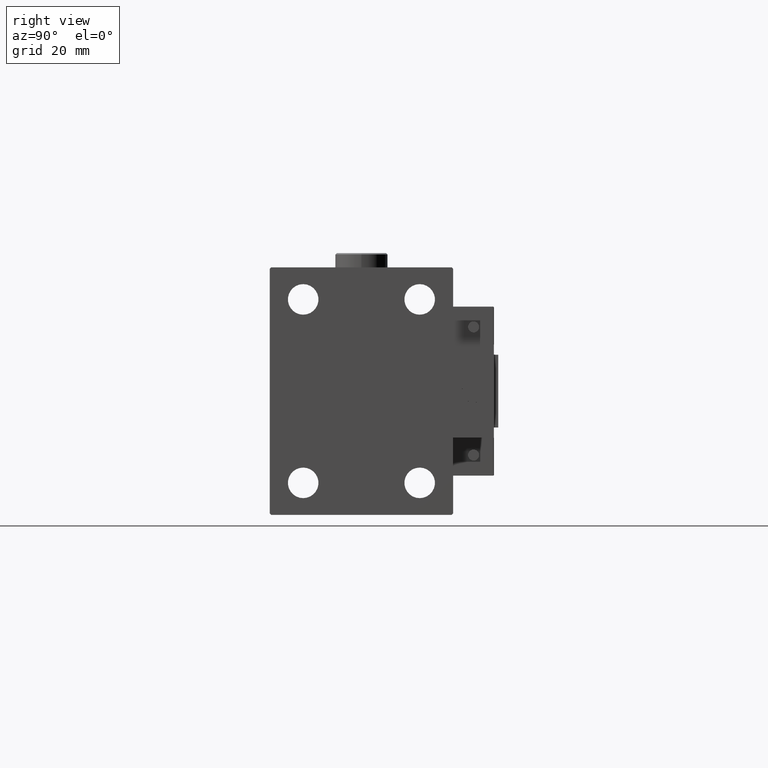
[diagram: clean part render]
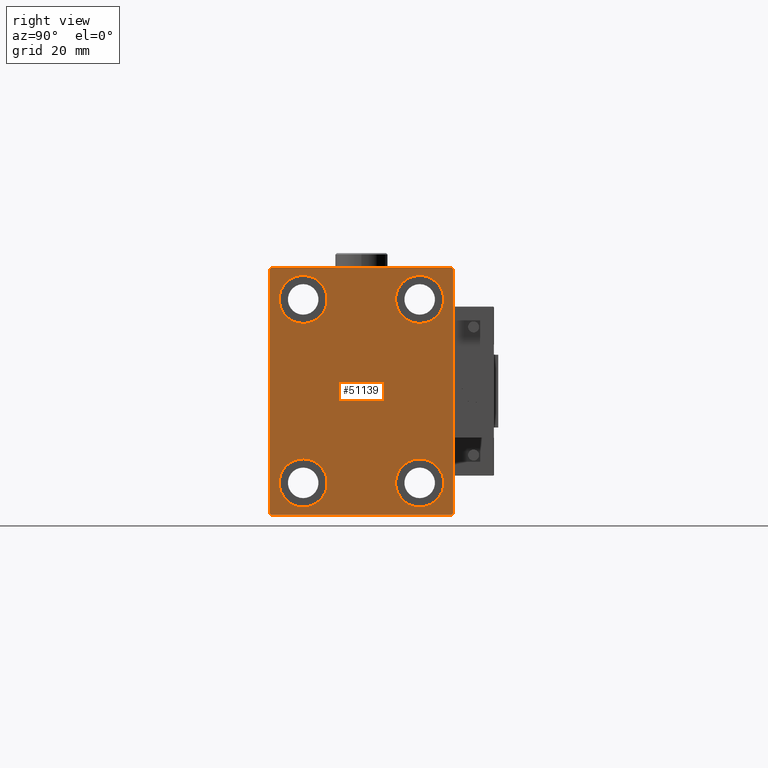
[diagram: same view with one face highlighted and labeled with its STEP entity id]
A machine part, right view. The second image highlights one B-rep face of the part: STEP entity #51139.
In plain terms, the highlighted planar face has unit normal (1, 0, 0).
Its self-contained STEP definition (entity closure, byte-faithful):
#138 = DIRECTION ( 'NONE',  ( -1.000000000000000000, -0.000000000000000000, -0.000000000000000000 ) ) ;
#539 = AXIS2_PLACEMENT_3D ( 'NONE', #2603, #14998, #26811 ) ;
#600 = CARTESIAN_POINT ( 'NONE',  ( 88.00000000000000000, 19.99999999999999645, -31.49999999999999289 ) ) ;
#1172 = AXIS2_PLACEMENT_3D ( 'NONE', #46733, #38493, #21451 ) ;
#1516 = EDGE_CURVE ( 'NONE', #49147, #28412, #7702, .T. ) ;
#1567 = CARTESIAN_POINT ( 'NONE',  ( 88.00000000000000000, -19.99999999999999645, 23.25000000000000355 ) ) ;
#2319 = LINE ( 'NONE', #35592, #26810 ) ;
#2603 = CARTESIAN_POINT ( 'NONE',  ( 88.00000000000000000, 20.00000000000000355, 31.50000000000000000 ) ) ;
#2731 = ORIENTED_EDGE ( 'NONE', *, *, #25497, .T. ) ;
#2841 = ORIENTED_EDGE ( 'NONE', *, *, #31513, .T. ) ;
#2885 = ORIENTED_EDGE ( 'NONE', *, *, #50374, .T. ) ;
#2987 = EDGE_CURVE ( 'NONE', #18360, #38834, #39170, .T. ) ;
#3042 = DIRECTION ( 'NONE',  ( -0.000000000000000000, -0.7071067811865474617, 0.7071067811865474617 ) ) ;
#4652 = ORIENTED_EDGE ( 'NONE', *, *, #51428, .T. ) ;
#5365 = DIRECTION ( 'NONE',  ( 0.000000000000000000, 0.000000000000000000, 1.000000000000000000 ) ) ;
#5684 = LINE ( 'NONE', #18333, #51940 ) ;
#6125 = VERTEX_POINT ( 'NONE', #48136 ) ;
#6211 = DIRECTION ( 'NONE',  ( 0.000000000000000000, -0.7071067811865378028, -0.7071067811865573427 ) ) ;
#6521 = EDGE_CURVE ( 'NONE', #12945, #42622, #42493, .T. ) ;
#6638 = EDGE_CURVE ( 'NONE', #37831, #20310, #13836, .T. ) ;
#7531 = VERTEX_POINT ( 'NONE', #18623 ) ;
#7631 = CARTESIAN_POINT ( 'NONE',  ( 88.00000000000000000, -20.00000000000000355, -23.24999999999999289 ) ) ;
#7702 = LINE ( 'NONE', #24477, #31200 ) ;
#8012 = CARTESIAN_POINT ( 'NONE',  ( 88.00000000000000000, -36.74999999999958078, -36.75000000000059686 ) ) ;
#8196 = CIRCLE ( 'NONE', #1172, 8.250000000000000000 ) ;
#8636 = CARTESIAN_POINT ( 'NONE',  ( 88.00000000000000000, 30.99999999999998579, 42.50000000000000711 ) ) ;
#9535 = DIRECTION ( 'NONE',  ( 0.000000000000000000, -1.632680918566406300E-16, 1.000000000000000000 ) ) ;
#9645 = DIRECTION ( 'NONE',  ( -0.000000000000000000, 0.7071067811865573427, -0.7071067811865378028 ) ) ;
#9715 = DIRECTION ( 'NONE',  ( 0.000000000000000000, 0.000000000000000000, 1.000000000000000000 ) ) ;
#9782 = ORIENTED_EDGE ( 'NONE', *, *, #2987, .T. ) ;
#9977 = CARTESIAN_POINT ( 'NONE',  ( 88.00000000000000000, 20.00000000000000355, 31.50000000000000000 ) ) ;
#10541 = CIRCLE ( 'NONE', #48280, 8.249999999999992895 ) ;
#10577 = AXIS2_PLACEMENT_3D ( 'NONE', #21312, #138, #42196 ) ;
#11116 = ORIENTED_EDGE ( 'NONE', *, *, #38273, .T. ) ;
#12433 = VECTOR ( 'NONE', #9645, 1000.000000000000000 ) ;
#12700 = CARTESIAN_POINT ( 'NONE',  ( 88.00000000000000000, 20.00000000000000355, 23.25000000000000355 ) ) ;
#12945 = VERTEX_POINT ( 'NONE', #46982 ) ;
#13836 = CIRCLE ( 'NONE', #44519, 8.250000000000000000 ) ;
#14371 = CARTESIAN_POINT ( 'NONE',  ( 88.00000000000000000, 31.00000000000002842, -42.50000000000000711 ) ) ;
#14608 = AXIS2_PLACEMENT_3D ( 'NONE', #19431, #36202, #27669 ) ;
#14998 = DIRECTION ( 'NONE',  ( -1.000000000000000000, -0.000000000000000000, -0.000000000000000000 ) ) ;
#15282 = CARTESIAN_POINT ( 'NONE',  ( 88.00000000000000000, -31.00000000000000000, -42.50000000000000711 ) ) ;
#15609 = FACE_OUTER_BOUND ( 'NONE', #51864, .T. ) ;
#15718 = EDGE_CURVE ( 'NONE', #42145, #49214, #36060, .T. ) ;
#15938 = VECTOR ( 'NONE', #3042, 1000.000000000000114 ) ;
#16569 = VERTEX_POINT ( 'NONE', #37612 ) ;
#16701 = FACE_BOUND ( 'NONE', #43311, .T. ) ;
#17670 = VERTEX_POINT ( 'NONE', #12700 ) ;
#18134 = ORIENTED_EDGE ( 'NONE', *, *, #21023, .T. ) ;
#18303 = ORIENTED_EDGE ( 'NONE', *, *, #15718, .T. ) ;
#18333 = CARTESIAN_POINT ( 'NONE',  ( 88.00000000000000000, -36.75000000000044054, 36.74999999999942446 ) ) ;
#18346 = EDGE_CURVE ( 'NONE', #28412, #6125, #42521, .T. ) ;
#18360 = VERTEX_POINT ( 'NONE', #46921 ) ;
#18623 = CARTESIAN_POINT ( 'NONE',  ( 88.00000000000000000, -31.00000000000001421, 42.49999999999999289 ) ) ;
#19270 = ORIENTED_EDGE ( 'NONE', *, *, #49607, .T. ) ;
#19431 = CARTESIAN_POINT ( 'NONE',  ( 88.00000000000000000, 19.99999999999999645, -31.49999999999999289 ) ) ;
#19710 = CARTESIAN_POINT ( 'NONE',  ( 88.00000000000000000, 0.000000000000000000, 0.000000000000000000 ) ) ;
#20256 = DIRECTION ( 'NONE',  ( 0.000000000000000000, 0.000000000000000000, -1.000000000000000000 ) ) ;
#20310 = VERTEX_POINT ( 'NONE', #7631 ) ;
#21023 = EDGE_CURVE ( 'NONE', #6125, #54160, #23938, .T. ) ;
#21312 = CARTESIAN_POINT ( 'NONE',  ( 88.00000000000000000, -19.99999999999999645, 31.50000000000000000 ) ) ;
#21451 = DIRECTION ( 'NONE',  ( 0.000000000000000000, 0.000000000000000000, 1.000000000000000000 ) ) ;
#21611 = DIRECTION ( 'NONE',  ( 0.000000000000000000, 0.000000000000000000, -1.000000000000000000 ) ) ;
#21665 = ORIENTED_EDGE ( 'NONE', *, *, #35281, .T. ) ;
#23912 = VERTEX_POINT ( 'NONE', #15282 ) ;
#23938 = LINE ( 'NONE', #40709, #15938 ) ;
#23948 = CARTESIAN_POINT ( 'NONE',  ( 88.00000000000000000, -19.99999999999999645, 39.74999999999999289 ) ) ;
#24366 = CARTESIAN_POINT ( 'NONE',  ( 88.00000000000000000, -20.00000000000000355, -39.74999999999999289 ) ) ;
#24376 = FACE_BOUND ( 'NONE', #50866, .T. ) ;
#24477 = CARTESIAN_POINT ( 'NONE',  ( 88.00000000000000000, 36.75000000000045475, -36.74999999999943867 ) ) ;
#25497 = EDGE_CURVE ( 'NONE', #20310, #37831, #8196, .T. ) ;
#25627 = DIRECTION ( 'NONE',  ( 0.000000000000000000, 0.000000000000000000, 1.000000000000000000 ) ) ;
#26132 = ORIENTED_EDGE ( 'NONE', *, *, #18346, .T. ) ;
#26810 = VECTOR ( 'NONE', #43816, 1000.000000000000000 ) ;
#26811 = DIRECTION ( 'NONE',  ( 0.000000000000000000, 0.000000000000000000, 1.000000000000000000 ) ) ;
#27669 = DIRECTION ( 'NONE',  ( 0.000000000000000000, 0.000000000000000000, 1.000000000000000000 ) ) ;
#28412 = VERTEX_POINT ( 'NONE', #30241 ) ;
#28890 = ORIENTED_EDGE ( 'NONE', *, *, #44642, .T. ) ;
#29519 = CARTESIAN_POINT ( 'NONE',  ( 88.00000000000000000, -19.99999999999999645, 31.50000000000000000 ) ) ;
#30241 = CARTESIAN_POINT ( 'NONE',  ( 88.00000000000000000, 31.50000000000001421, -42.00000000000000711 ) ) ;
#30508 = VECTOR ( 'NONE', #21611, 1000.000000000000000 ) ;
#31170 = ORIENTED_EDGE ( 'NONE', *, *, #6521, .T. ) ;
#31200 = VECTOR ( 'NONE', #41249, 1000.000000000000000 ) ;
#31513 = EDGE_CURVE ( 'NONE', #16569, #17670, #10541, .T. ) ;
#32093 = VECTOR ( 'NONE', #46292, 1000.000000000000000 ) ;
#32329 = ORIENTED_EDGE ( 'NONE', *, *, #6638, .T. ) ;
#32692 = EDGE_CURVE ( 'NONE', #38834, #18360, #53585, .T. ) ;
#32726 = EDGE_LOOP ( 'NONE', ( #37683, #9782 ) ) ;
#33048 = LINE ( 'NONE', #8012, #12433 ) ;
#35281 = EDGE_CURVE ( 'NONE', #7531, #12945, #5684, .T. ) ;
#35592 = CARTESIAN_POINT ( 'NONE',  ( 88.00000000000000000, -31.50000000000000000, -42.50000000000000711 ) ) ;
#36060 = CIRCLE ( 'NONE', #10577, 8.249999999999992895 ) ;
#36099 = CARTESIAN_POINT ( 'NONE',  ( 88.00000000000000000, 19.99999999999999645, -39.74999999999999289 ) ) ;
#36202 = DIRECTION ( 'NONE',  ( -1.000000000000000000, -0.000000000000000000, -0.000000000000000000 ) ) ;
#36492 = FACE_BOUND ( 'NONE', #44638, .T. ) ;
#37384 = CIRCLE ( 'NONE', #539, 8.249999999999992895 ) ;
#37612 = CARTESIAN_POINT ( 'NONE',  ( 88.00000000000000000, 20.00000000000000355, 39.74999999999999289 ) ) ;
#37683 = ORIENTED_EDGE ( 'NONE', *, *, #32692, .T. ) ;
#37831 = VERTEX_POINT ( 'NONE', #24366 ) ;
#38273 = EDGE_CURVE ( 'NONE', #42622, #23912, #33048, .T. ) ;
#38493 = DIRECTION ( 'NONE',  ( -1.000000000000000000, -0.000000000000000000, -0.000000000000000000 ) ) ;
#38834 = VERTEX_POINT ( 'NONE', #36099 ) ;
#39035 = AXIS2_PLACEMENT_3D ( 'NONE', #29519, #41330, #49565 ) ;
#39065 = DIRECTION ( 'NONE',  ( -1.000000000000000000, -0.000000000000000000, -0.000000000000000000 ) ) ;
#39120 = DIRECTION ( 'NONE',  ( -1.000000000000000000, -0.000000000000000000, -0.000000000000000000 ) ) ;
#39146 = AXIS2_PLACEMENT_3D ( 'NONE', #19710, #54342, #20256 ) ;
#39170 = CIRCLE ( 'NONE', #14608, 8.250000000000000000 ) ;
#40445 = AXIS2_PLACEMENT_3D ( 'NONE', #600, #39065, #25627 ) ;
#40709 = CARTESIAN_POINT ( 'NONE',  ( 88.00000000000000000, 36.74999999999999289, 36.74999999999999289 ) ) ;
#41145 = PLANE ( 'NONE',  #39146 ) ;
#41249 = DIRECTION ( 'NONE',  ( -0.000000000000000000, 0.7071067811865378028, 0.7071067811865573427 ) ) ;
#41330 = DIRECTION ( 'NONE',  ( -1.000000000000000000, -0.000000000000000000, -0.000000000000000000 ) ) ;
#41688 = FACE_BOUND ( 'NONE', #32726, .T. ) ;
#42145 = VERTEX_POINT ( 'NONE', #1567 ) ;
#42196 = DIRECTION ( 'NONE',  ( 0.000000000000000000, 0.000000000000000000, 1.000000000000000000 ) ) ;
#42439 = LINE ( 'NONE', #49578, #32093 ) ;
#42493 = LINE ( 'NONE', #54041, #30508 ) ;
#42521 = LINE ( 'NONE', #42789, #51897 ) ;
#42622 = VERTEX_POINT ( 'NONE', #53141 ) ;
#42789 = CARTESIAN_POINT ( 'NONE',  ( 88.00000000000000000, 31.50000000000001421, -42.50000000000000711 ) ) ;
#43289 = DIRECTION ( 'NONE',  ( -1.000000000000000000, -0.000000000000000000, -0.000000000000000000 ) ) ;
#43311 = EDGE_LOOP ( 'NONE', ( #18303, #28890 ) ) ;
#43816 = DIRECTION ( 'NONE',  ( 0.000000000000000000, 1.000000000000000000, 0.000000000000000000 ) ) ;
#44519 = AXIS2_PLACEMENT_3D ( 'NONE', #46892, #43289, #5365 ) ;
#44638 = EDGE_LOOP ( 'NONE', ( #32329, #2731 ) ) ;
#44642 = EDGE_CURVE ( 'NONE', #49214, #42145, #47801, .T. ) ;
#46292 = DIRECTION ( 'NONE',  ( 0.000000000000000000, -1.000000000000000000, -2.202823461557850341E-16 ) ) ;
#46733 = CARTESIAN_POINT ( 'NONE',  ( 88.00000000000000000, -20.00000000000000355, -31.49999999999999289 ) ) ;
#46892 = CARTESIAN_POINT ( 'NONE',  ( 88.00000000000000000, -20.00000000000000355, -31.49999999999999289 ) ) ;
#46921 = CARTESIAN_POINT ( 'NONE',  ( 88.00000000000000000, 19.99999999999999645, -23.24999999999999289 ) ) ;
#46982 = CARTESIAN_POINT ( 'NONE',  ( 88.00000000000000000, -31.50000000000000000, 41.99999999999999289 ) ) ;
#47801 = CIRCLE ( 'NONE', #39035, 8.249999999999992895 ) ;
#48136 = CARTESIAN_POINT ( 'NONE',  ( 88.00000000000000000, 31.50000000000000000, 41.99999999999999289 ) ) ;
#48280 = AXIS2_PLACEMENT_3D ( 'NONE', #9977, #39120, #9715 ) ;
#49147 = VERTEX_POINT ( 'NONE', #14371 ) ;
#49214 = VERTEX_POINT ( 'NONE', #23948 ) ;
#49565 = DIRECTION ( 'NONE',  ( 0.000000000000000000, 0.000000000000000000, 1.000000000000000000 ) ) ;
#49578 = CARTESIAN_POINT ( 'NONE',  ( 88.00000000000000000, 31.50000000000000000, 42.50000000000000711 ) ) ;
#49607 = EDGE_CURVE ( 'NONE', #23912, #49147, #2319, .T. ) ;
#50374 = EDGE_CURVE ( 'NONE', #54160, #7531, #42439, .T. ) ;
#50866 = EDGE_LOOP ( 'NONE', ( #4652, #2841 ) ) ;
#50924 = ORIENTED_EDGE ( 'NONE', *, *, #1516, .T. ) ;
#51139 = ADVANCED_FACE ( 'NONE', ( #41688, #16701, #24376, #36492, #15609 ), #41145, .T. ) ;
#51428 = EDGE_CURVE ( 'NONE', #17670, #16569, #37384, .T. ) ;
#51864 = EDGE_LOOP ( 'NONE', ( #2885, #21665, #31170, #11116, #19270, #50924, #26132, #18134 ) ) ;
#51897 = VECTOR ( 'NONE', #9535, 1000.000000000000000 ) ;
#51940 = VECTOR ( 'NONE', #6211, 1000.000000000000000 ) ;
#53141 = CARTESIAN_POINT ( 'NONE',  ( 88.00000000000000000, -31.50000000000000000, -42.00000000000002132 ) ) ;
#53585 = CIRCLE ( 'NONE', #40445, 8.250000000000000000 ) ;
#54041 = CARTESIAN_POINT ( 'NONE',  ( 88.00000000000000000, -31.50000000000000000, 42.49999999999999289 ) ) ;
#54160 = VERTEX_POINT ( 'NONE', #8636 ) ;
#54342 = DIRECTION ( 'NONE',  ( 1.000000000000000000, 0.000000000000000000, 0.000000000000000000 ) ) ;